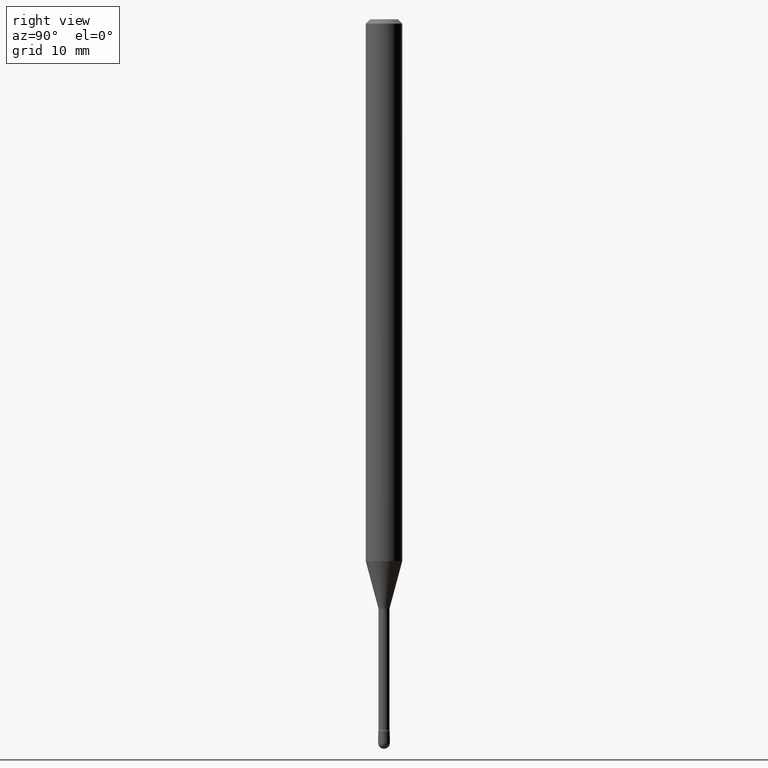
[diagram: clean part render]
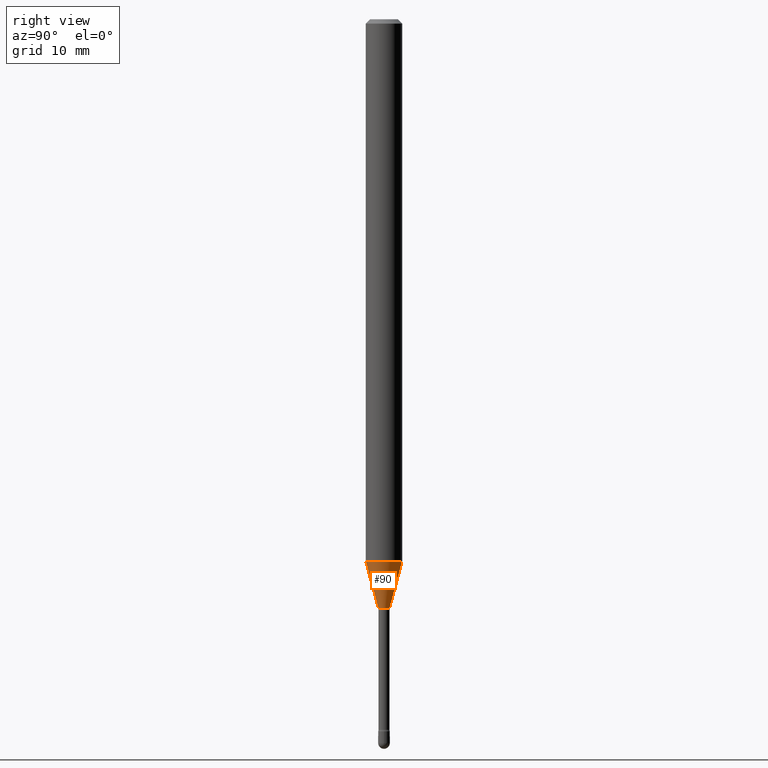
[diagram: same view with one face highlighted and labeled with its STEP entity id]
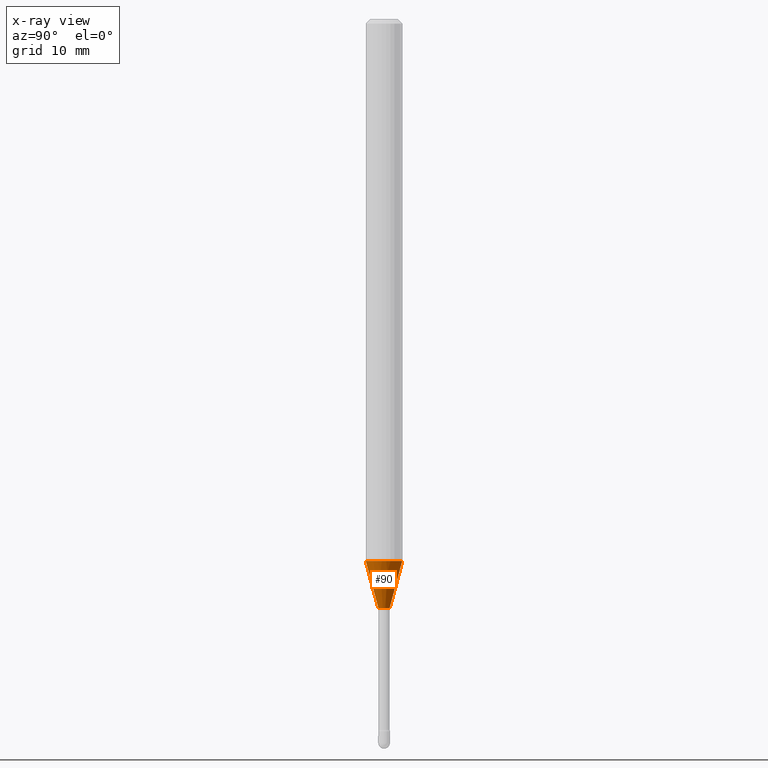
[diagram: x-ray of the same camera — body ghosted, the highlighted face saturated]
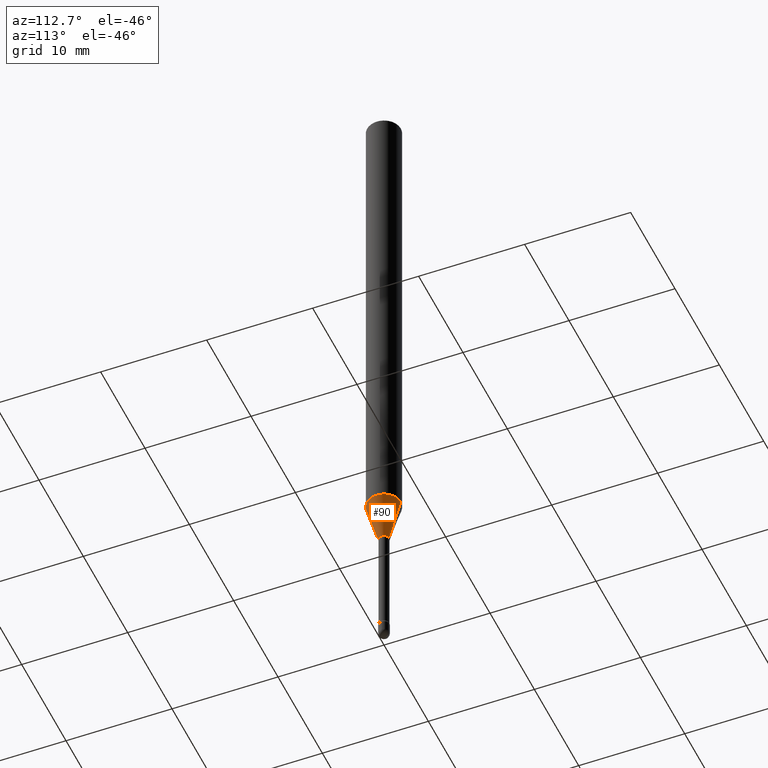
[diagram: same view with one face highlighted and labeled with its STEP entity id]
A machine part, right view. The second image highlights one B-rep face of the part: STEP entity #90.
The next image is the same camera in x-ray: the body ghosted, the highlighted face saturated — about 0% of this face is hidden behind the body in this view.
A second angle (auxiliary view) of the same face is appended — the face is thin or edge-on in the first view.
In plain terms, the highlighted conical surface has half-angle 15 deg.
Its self-contained STEP definition (entity closure, byte-faithful):
#5 = AXIS2_PLACEMENT_3D ( 'NONE', #96, #431, #417 ) ;
#12 = FACE_OUTER_BOUND ( 'NONE', #367, .T. ) ;
#20 = ORIENTED_EDGE ( 'NONE', *, *, #393, .T. ) ;
#23 = CONICAL_SURFACE ( 'NONE', #348, 0.01931111260566398605, 0.2617993877991497964 ) ;
#42 = VERTEX_POINT ( 'NONE', #203 ) ;
#52 = DIRECTION ( 'NONE',  ( -6.982962677686265922E-15, -1.000000000000000000, 0.000000000000000000 ) ) ;
#90 = ADVANCED_FACE ( 'NONE', ( #12 ), #23, .T. ) ;
#93 = DIRECTION ( 'NONE',  ( -2.445419758855719458E-29, 3.491551577410471603E-15, 1.000000000000000000 ) ) ;
#96 = CARTESIAN_POINT ( 'NONE',  ( 4.935083279069169162E-29, -7.046274057975598394E-15, -2.018092501787273285 ) ) ;
#101 = CARTESIAN_POINT ( 'NONE',  ( 4.440892098501077785E-16, 0.06249999999999350520, -1.856909379709240637 ) ) ;
#115 = DIRECTION ( 'NONE',  ( -1.807323732225326984E-15, -0.2588190451025177419, 0.9659258262890690894 ) ) ;
#130 = EDGE_CURVE ( 'NONE', #42, #194, #142, .T. ) ;
#133 = DIRECTION ( 'NONE',  ( -6.982962677686265922E-15, -1.000000000000000000, 4.370956789862821150E-15 ) ) ;
#139 = CARTESIAN_POINT ( 'NONE',  ( 4.935083279069169162E-29, -7.046274057975598394E-15, -2.018092501787273285 ) ) ;
#142 = CIRCLE ( 'NONE', #5, 0.01931111260566398605 ) ;
#184 = EDGE_CURVE ( 'NONE', #42, #212, #202, .T. ) ;
#194 = VERTEX_POINT ( 'NONE', #234 ) ;
#202 = LINE ( 'NONE', #557, #274 ) ;
#203 = CARTESIAN_POINT ( 'NONE',  ( -1.348487785898990376E-16, -0.01931111260567103249, -2.018092501787273285 ) ) ;
#212 = VERTEX_POINT ( 'NONE', #380 ) ;
#234 = CARTESIAN_POINT ( 'NONE',  ( 2.906514588320780024E-16, 0.01931111260565693613, -2.018092501787273285 ) ) ;
#239 = VERTEX_POINT ( 'NONE', #101 ) ;
#262 = LINE ( 'NONE', #354, #325 ) ;
#274 = VECTOR ( 'NONE', #115, 39.37007874015748143 ) ;
#303 = CIRCLE ( 'NONE', #527, 0.06250000000000000000 ) ;
#325 = VECTOR ( 'NONE', #445, 39.37007874015748143 ) ;
#348 = AXIS2_PLACEMENT_3D ( 'NONE', #139, #93, #52 ) ;
#354 = CARTESIAN_POINT ( 'NONE',  ( 1.372137078140477580E-16, 0.01931111260565693613, -2.018092501787273285 ) ) ;
#367 = EDGE_LOOP ( 'NONE', ( #501, #20, #419, #413 ) ) ;
#380 = CARTESIAN_POINT ( 'NONE',  ( -4.364351673553463099E-16, -0.06250000000000649480, -1.856909379709239971 ) ) ;
#393 = EDGE_CURVE ( 'NONE', #194, #239, #262, .T. ) ;
#394 = CARTESIAN_POINT ( 'NONE',  ( 4.540922887545493413E-29, -6.483494873832099196E-15, -1.856909379709240415 ) ) ;
#413 = ORIENTED_EDGE ( 'NONE', *, *, #184, .F. ) ;
#417 = DIRECTION ( 'NONE',  ( -6.982962677686265922E-15, -1.000000000000000000, 0.000000000000000000 ) ) ;
#419 = ORIENTED_EDGE ( 'NONE', *, *, #422, .F. ) ;
#422 = EDGE_CURVE ( 'NONE', #212, #239, #303, .T. ) ;
#431 = DIRECTION ( 'NONE',  ( -2.445419758855719458E-29, 3.491551577410471603E-15, 1.000000000000000000 ) ) ;
#445 = DIRECTION ( 'NONE',  ( 1.839019923739597160E-15, 0.2588190451025245142, 0.9659258262890673130 ) ) ;
#501 = ORIENTED_EDGE ( 'NONE', *, *, #130, .T. ) ;
#527 = AXIS2_PLACEMENT_3D ( 'NONE', #394, #532, #133 ) ;
#532 = DIRECTION ( 'NONE',  ( -2.445419758855719458E-29, 3.491551577410471603E-15, 1.000000000000000000 ) ) ;
#557 = CARTESIAN_POINT ( 'NONE',  ( -1.348487785898990376E-16, -0.01931111260567103249, -2.018092501787273285 ) ) ;